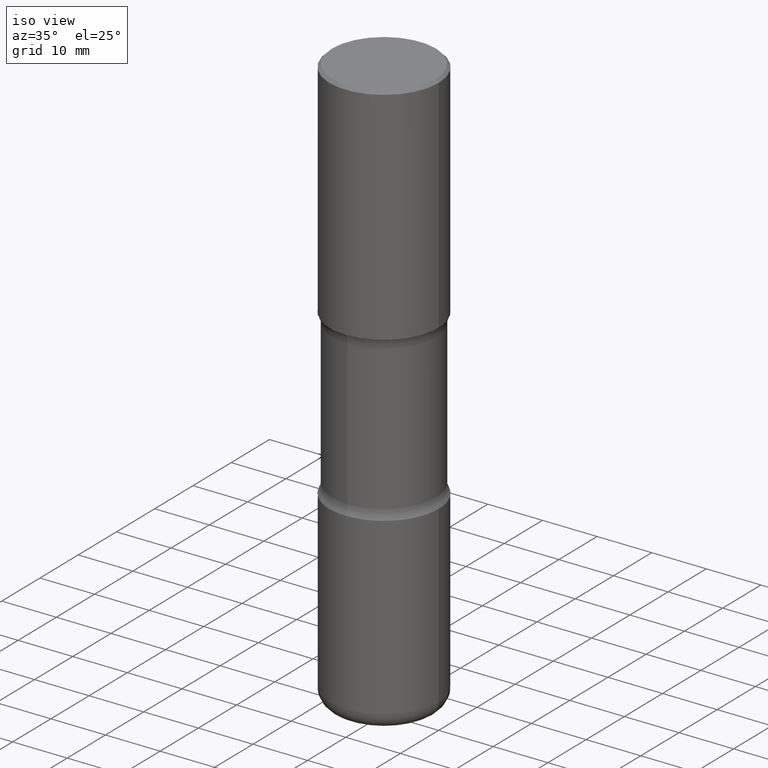
[diagram: clean part render]
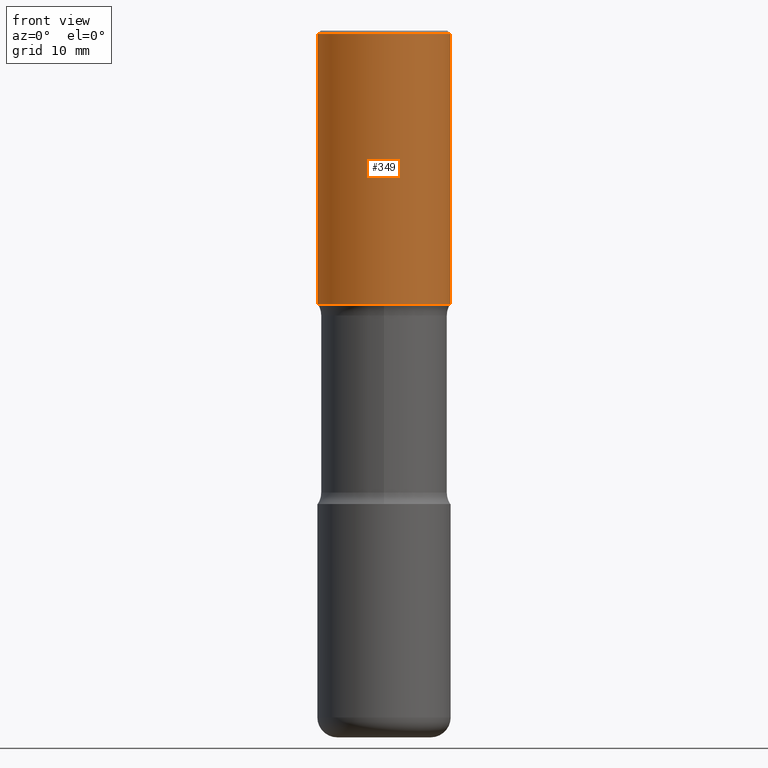
[diagram: tour spotlight — one face highlighted and labeled with its STEP entity id]
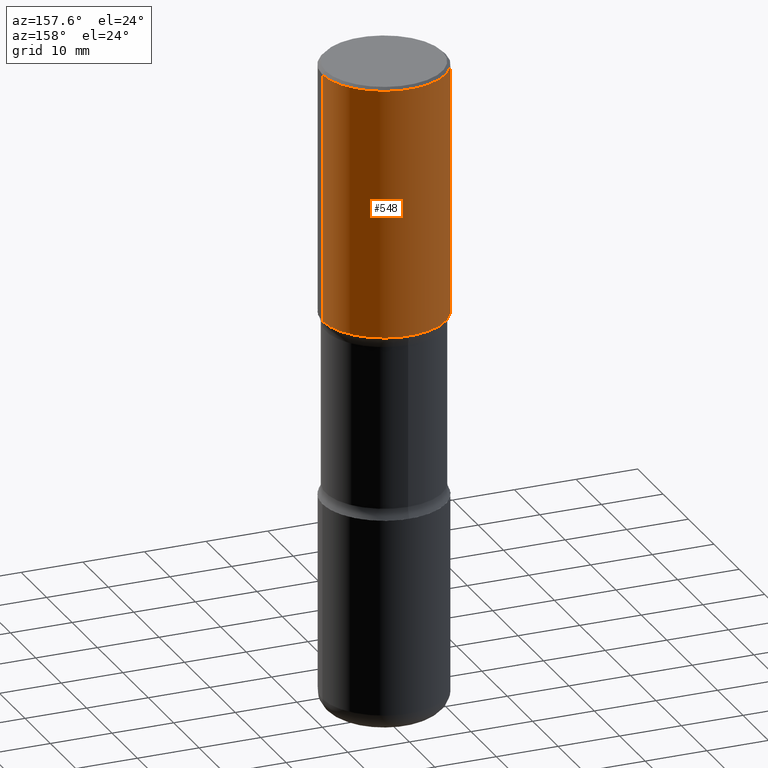
[diagram: tour spotlight — one face highlighted and labeled with its STEP entity id]
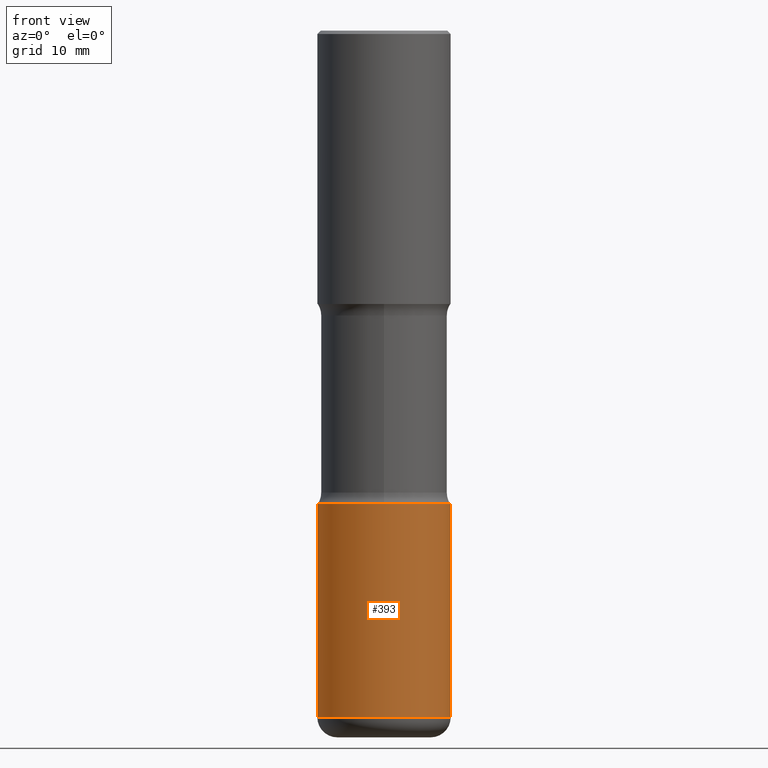
[diagram: tour spotlight — one face highlighted and labeled with its STEP entity id]
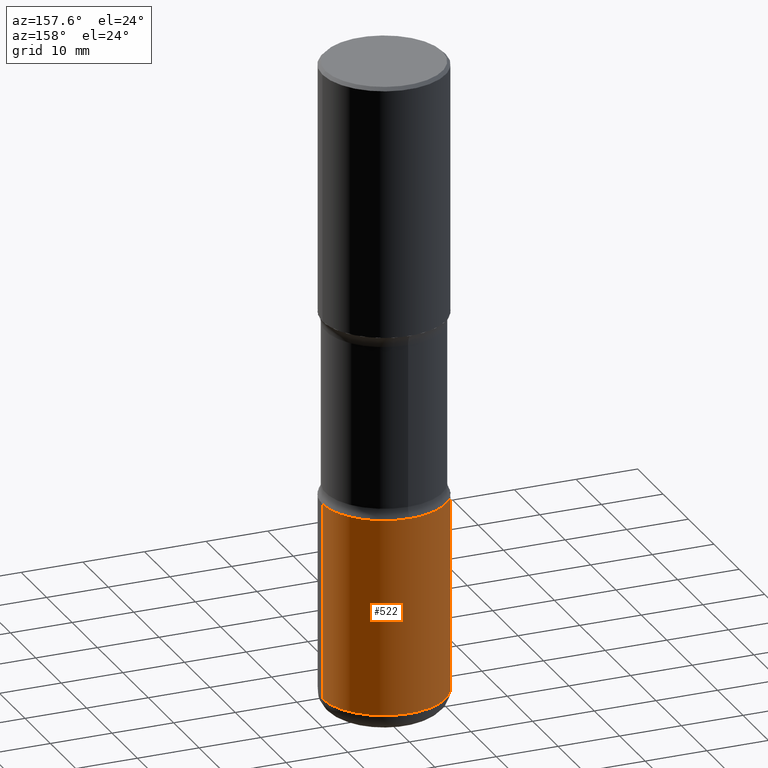
[diagram: tour spotlight — one face highlighted and labeled with its STEP entity id]
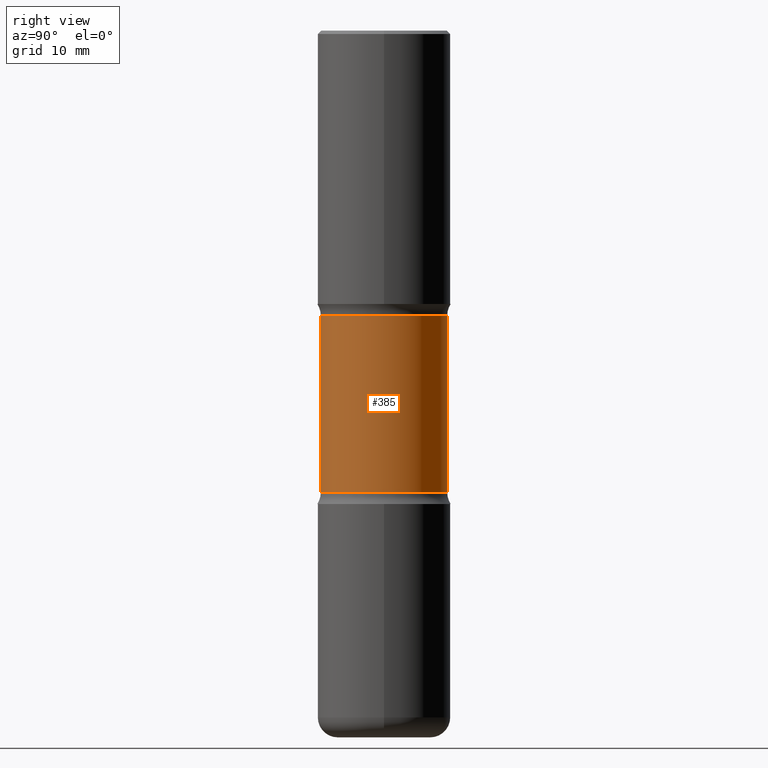
[diagram: tour spotlight — one face highlighted and labeled with its STEP entity id]
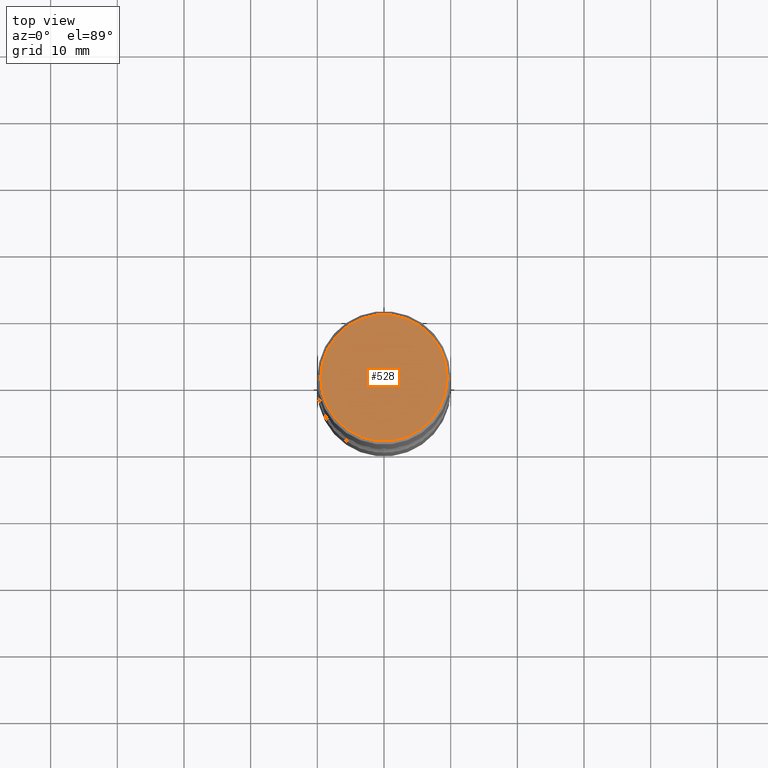
[diagram: tour spotlight — one face highlighted and labeled with its STEP entity id]
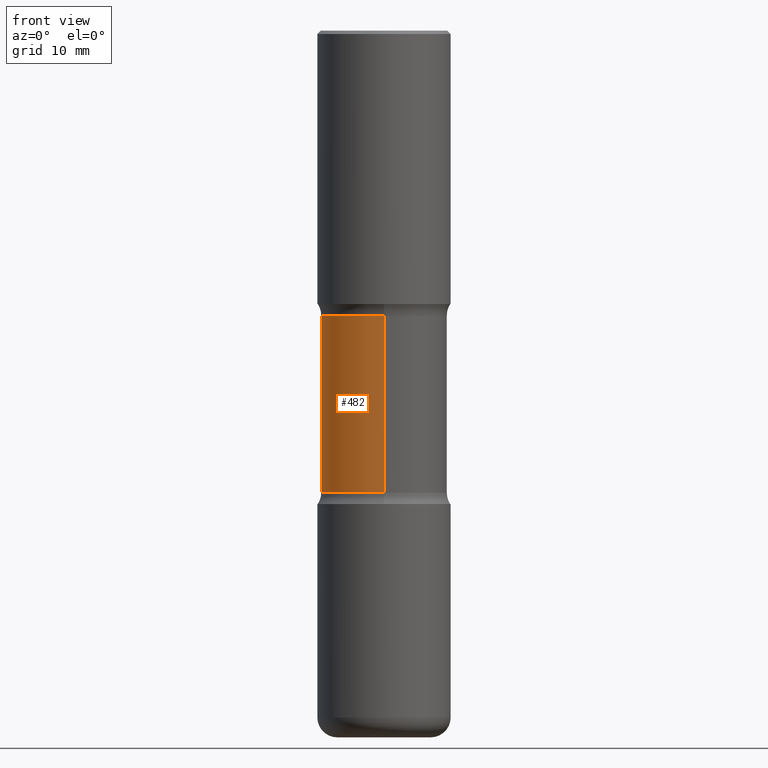
[diagram: tour spotlight — one face highlighted and labeled with its STEP entity id]
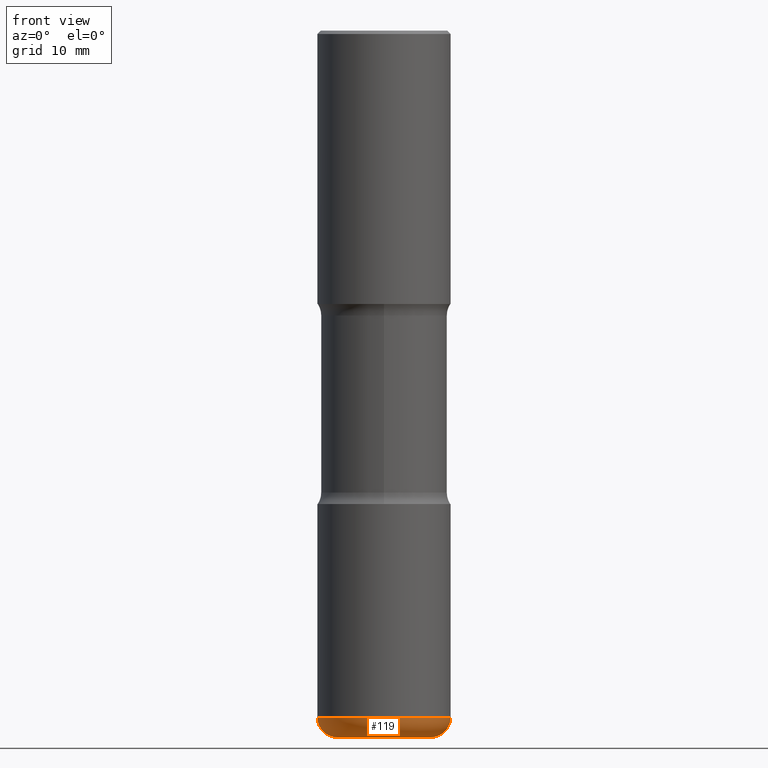
[diagram: tour spotlight — one face highlighted and labeled with its STEP entity id]
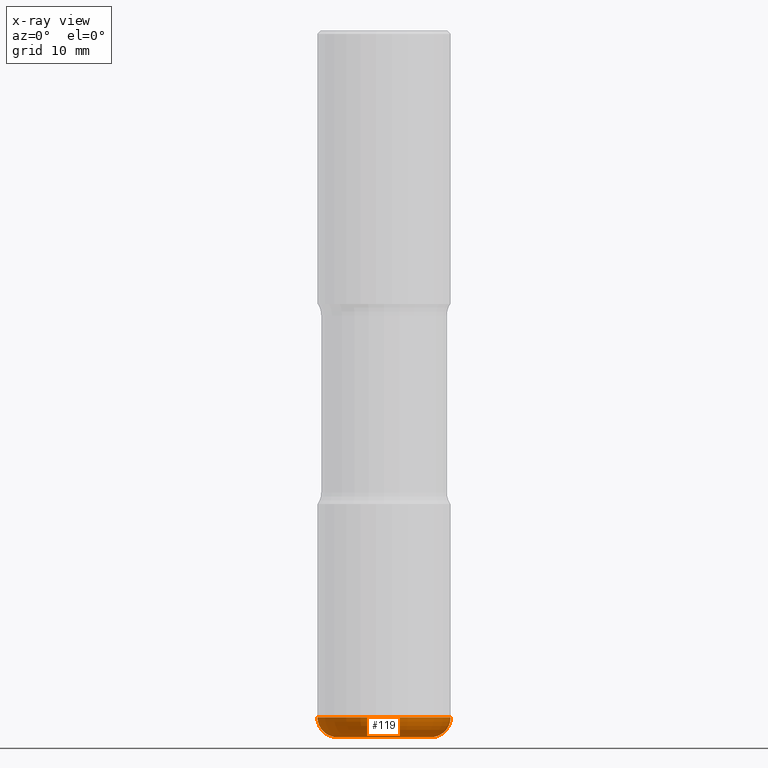
[diagram: x-ray of the same camera — body ghosted, this tour face saturated]
A machine part: a face-by-face anatomy tour. The part has 20 B-rep faces; the first image is the clean iso view, then the 8 largest visible faces are spotlighted one at a time (largest first), each with its STEP entity span.

Face 1 — front view, entity #349. In plain terms, the highlighted cylindrical surface (partial cylindrical patch) has radius 10 mm, axis along (-0, 0, 1).
Definition (entity closure, byte-faithful):
#1 = DIRECTION ( 'NONE',  ( -2.445468806185136877E-29, 3.491481338843145188E-15, 1.000000000000000000 ) ) ;
#7 = CYLINDRICAL_SURFACE ( 'NONE', #381, 0.3937000000000004940 ) ;
#9 = DIRECTION ( 'NONE',  ( 1.000000000000000000, -6.982962677686266711E-15, 0.000000000000000000 ) ) ;
#16 = VECTOR ( 'NONE', #54, 39.37007874015748143 ) ;
#54 = DIRECTION ( 'NONE',  ( -2.445468806185136877E-29, 3.491481338843145188E-15, 1.000000000000000000 ) ) ;
#57 = DIRECTION ( 'NONE',  ( -2.445468806185136597E-29, 3.491481338843145583E-15, 1.000000000000000000 ) ) ;
#75 = ORIENTED_EDGE ( 'NONE', *, *, #314, .T. ) ;
#82 = EDGE_LOOP ( 'NONE', ( #135, #509, #75, #345 ) ) ;
#85 = AXIS2_PLACEMENT_3D ( 'NONE', #102, #277, #443 ) ;
#89 = CARTESIAN_POINT ( 'NONE',  ( -0.3937000000000007160, -5.530807721427186863E-17, -1.614100000000000090 ) ) ;
#96 = CARTESIAN_POINT ( 'NONE',  ( 0.3937000000000004940, -2.749192406205086766E-15, 1.919750796630862414E-29 ) ) ;
#102 = CARTESIAN_POINT ( 'NONE',  ( 3.947231200063429727E-29, -5.635600029026721857E-15, -1.614100000000000090 ) ) ;
#135 = ORIENTED_EDGE ( 'NONE', *, *, #143, .F. ) ;
#138 = CIRCLE ( 'NONE', #85, 0.3937000000000006605 ) ;
#140 = DIRECTION ( 'NONE',  ( -2.445468806185136597E-29, 3.491481338843145583E-15, 1.000000000000000000 ) ) ;
#143 = EDGE_CURVE ( 'NONE', #174, #331, #299, .T. ) ;
#174 = VERTEX_POINT ( 'NONE', #89 ) ;
#184 = DIRECTION ( 'NONE',  ( 1.000000000000000000, -6.982962677686266711E-15, 4.876176775795935793E-29 ) ) ;
#225 = CARTESIAN_POINT ( 'NONE',  ( 4.890937612370306439E-31, -6.982962677686338448E-17, -0.02000000000000013572 ) ) ;
#251 = VERTEX_POINT ( 'NONE', #518 ) ;
#252 = CARTESIAN_POINT ( 'NONE',  ( -0.3937000000000004940, 2.797406750687517942E-15, -1.936584745033358697E-29 ) ) ;
#271 = FACE_OUTER_BOUND ( 'NONE', #82, .T. ) ;
#277 = DIRECTION ( 'NONE',  ( -2.445468806185136597E-29, 3.491481338843145583E-15, 1.000000000000000000 ) ) ;
#299 = LINE ( 'NONE', #252, #346 ) ;
#310 = AXIS2_PLACEMENT_3D ( 'NONE', #225, #140, #9 ) ;
#314 = EDGE_CURVE ( 'NONE', #251, #558, #521, .T. ) ;
#331 = VERTEX_POINT ( 'NONE', #481 ) ;
#345 = ORIENTED_EDGE ( 'NONE', *, *, #400, .F. ) ;
#346 = VECTOR ( 'NONE', #1, 39.37007874015748143 ) ;
#349 = ADVANCED_FACE ( 'NONE', ( #271 ), #7, .T. ) ;
#353 = CARTESIAN_POINT ( 'NONE',  ( 0.000000000000000000, 0.000000000000000000, 0.000000000000000000 ) ) ;
#381 = AXIS2_PLACEMENT_3D ( 'NONE', #353, #57, #184 ) ;
#390 = CARTESIAN_POINT ( 'NONE',  ( 0.3937000000000003830, -2.770807688499518100E-15, -0.02000000000000013572 ) ) ;
#400 = EDGE_CURVE ( 'NONE', #331, #558, #467, .T. ) ;
#443 = DIRECTION ( 'NONE',  ( 1.000000000000000000, -6.982962677686266711E-15, 0.000000000000000000 ) ) ;
#467 = CIRCLE ( 'NONE', #310, 0.3937000000000003830 ) ;
#481 = CARTESIAN_POINT ( 'NONE',  ( -0.3937000000000003830, 2.679362779428222679E-15, -0.02000000000000013572 ) ) ;
#502 = EDGE_CURVE ( 'NONE', #174, #251, #138, .T. ) ;
#509 = ORIENTED_EDGE ( 'NONE', *, *, #502, .T. ) ;
#518 = CARTESIAN_POINT ( 'NONE',  ( 0.3937000000000006605, -8.384792435231810596E-15, -1.614100000000000090 ) ) ;
#521 = LINE ( 'NONE', #96, #16 ) ;
#558 = VERTEX_POINT ( 'NONE', #390 ) ;

Face 2 — auxiliary view, entity #548. In plain terms, the highlighted cylindrical surface (partial cylindrical patch) has radius 10 mm, axis along (-0, 0, 1).
Definition (entity closure, byte-faithful):
#1 = DIRECTION ( 'NONE',  ( -2.445468806185136877E-29, 3.491481338843145188E-15, 1.000000000000000000 ) ) ;
#10 = CIRCLE ( 'NONE', #388, 0.3937000000000006605 ) ;
#16 = VECTOR ( 'NONE', #54, 39.37007874015748143 ) ;
#44 = EDGE_LOOP ( 'NONE', ( #239, #426, #193, #244 ) ) ;
#54 = DIRECTION ( 'NONE',  ( -2.445468806185136877E-29, 3.491481338843145188E-15, 1.000000000000000000 ) ) ;
#89 = CARTESIAN_POINT ( 'NONE',  ( -0.3937000000000007160, -5.530807721427186863E-17, -1.614100000000000090 ) ) ;
#96 = CARTESIAN_POINT ( 'NONE',  ( 0.3937000000000004940, -2.749192406205086766E-15, 1.919750796630862414E-29 ) ) ;
#100 = AXIS2_PLACEMENT_3D ( 'NONE', #103, #444, #178 ) ;
#103 = CARTESIAN_POINT ( 'NONE',  ( 0.000000000000000000, 0.000000000000000000, 0.000000000000000000 ) ) ;
#127 = DIRECTION ( 'NONE',  ( -2.445468806185136597E-29, 3.491481338843145583E-15, 1.000000000000000000 ) ) ;
#143 = EDGE_CURVE ( 'NONE', #174, #331, #299, .T. ) ;
#174 = VERTEX_POINT ( 'NONE', #89 ) ;
#178 = DIRECTION ( 'NONE',  ( 1.000000000000000000, -6.982962677686266711E-15, 4.876176775795935793E-29 ) ) ;
#191 = EDGE_CURVE ( 'NONE', #251, #174, #10, .T. ) ;
#193 = ORIENTED_EDGE ( 'NONE', *, *, #312, .F. ) ;
#224 = DIRECTION ( 'NONE',  ( 1.000000000000000000, -6.982962677686266711E-15, 0.000000000000000000 ) ) ;
#235 = AXIS2_PLACEMENT_3D ( 'NONE', #439, #315, #224 ) ;
#239 = ORIENTED_EDGE ( 'NONE', *, *, #191, .T. ) ;
#244 = ORIENTED_EDGE ( 'NONE', *, *, #314, .F. ) ;
#251 = VERTEX_POINT ( 'NONE', #518 ) ;
#252 = CARTESIAN_POINT ( 'NONE',  ( -0.3937000000000004940, 2.797406750687517942E-15, -1.936584745033358697E-29 ) ) ;
#255 = DIRECTION ( 'NONE',  ( 1.000000000000000000, -6.982962677686266711E-15, 0.000000000000000000 ) ) ;
#299 = LINE ( 'NONE', #252, #346 ) ;
#312 = EDGE_CURVE ( 'NONE', #558, #331, #413, .T. ) ;
#314 = EDGE_CURVE ( 'NONE', #251, #558, #521, .T. ) ;
#315 = DIRECTION ( 'NONE',  ( -2.445468806185136597E-29, 3.491481338843145583E-15, 1.000000000000000000 ) ) ;
#319 = FACE_OUTER_BOUND ( 'NONE', #44, .T. ) ;
#331 = VERTEX_POINT ( 'NONE', #481 ) ;
#344 = CARTESIAN_POINT ( 'NONE',  ( 3.947231200063429727E-29, -5.635600029026721857E-15, -1.614100000000000090 ) ) ;
#346 = VECTOR ( 'NONE', #1, 39.37007874015748143 ) ;
#388 = AXIS2_PLACEMENT_3D ( 'NONE', #344, #127, #255 ) ;
#390 = CARTESIAN_POINT ( 'NONE',  ( 0.3937000000000003830, -2.770807688499518100E-15, -0.02000000000000013572 ) ) ;
#413 = CIRCLE ( 'NONE', #235, 0.3937000000000003830 ) ;
#426 = ORIENTED_EDGE ( 'NONE', *, *, #143, .T. ) ;
#439 = CARTESIAN_POINT ( 'NONE',  ( 4.890937612370306439E-31, -6.982962677686338448E-17, -0.02000000000000013572 ) ) ;
#444 = DIRECTION ( 'NONE',  ( -2.445468806185136597E-29, 3.491481338843145583E-15, 1.000000000000000000 ) ) ;
#481 = CARTESIAN_POINT ( 'NONE',  ( -0.3937000000000003830, 2.679362779428222679E-15, -0.02000000000000013572 ) ) ;
#484 = CYLINDRICAL_SURFACE ( 'NONE', #100, 0.3937000000000004940 ) ;
#518 = CARTESIAN_POINT ( 'NONE',  ( 0.3937000000000006605, -8.384792435231810596E-15, -1.614100000000000090 ) ) ;
#521 = LINE ( 'NONE', #96, #16 ) ;
#548 = ADVANCED_FACE ( 'NONE', ( #319 ), #484, .T. ) ;
#558 = VERTEX_POINT ( 'NONE', #390 ) ;

Face 3 — front view, entity #393. In plain terms, the highlighted cylindrical surface (partial cylindrical patch) has radius 10 mm, axis along (-0, 0, 1).
Definition (entity closure, byte-faithful):
#5 = VECTOR ( 'NONE', #105, 39.37007874015748143 ) ;
#20 = DIRECTION ( 'NONE',  ( -2.445468806185136597E-29, 3.491481338843145583E-15, 1.000000000000000000 ) ) ;
#25 = ORIENTED_EDGE ( 'NONE', *, *, #45, .F. ) ;
#27 = EDGE_CURVE ( 'NONE', #87, #61, #248, .T. ) ;
#45 = EDGE_CURVE ( 'NONE', #410, #260, #537, .T. ) ;
#52 = FACE_OUTER_BOUND ( 'NONE', #341, .T. ) ;
#61 = VERTEX_POINT ( 'NONE', #409 ) ;
#63 = DIRECTION ( 'NONE',  ( 1.000000000000000000, -6.982962677686268288E-15, 0.000000000000000000 ) ) ;
#66 = CARTESIAN_POINT ( 'NONE',  ( -0.3937000000000004940, 2.797406750687517942E-15, -1.936584745033358697E-29 ) ) ;
#87 = VERTEX_POINT ( 'NONE', #176 ) ;
#105 = DIRECTION ( 'NONE',  ( -2.445468806185136877E-29, 3.491481338843145188E-15, 1.000000000000000000 ) ) ;
#125 = EDGE_CURVE ( 'NONE', #260, #61, #504, .T. ) ;
#176 = CARTESIAN_POINT ( 'NONE',  ( 0.3937000000000009381, -1.690749838334792865E-14, -4.055099999999999483 ) ) ;
#233 = VECTOR ( 'NONE', #416, 39.37007874015748143 ) ;
#248 = LINE ( 'NONE', #486, #5 ) ;
#260 = VERTEX_POINT ( 'NONE', #269 ) ;
#269 = CARTESIAN_POINT ( 'NONE',  ( -0.3937000000000002164, -9.161440557051081666E-15, -2.795200000000000351 ) ) ;
#272 = DIRECTION ( 'NONE',  ( 1.000000000000000000, -6.982962677686266711E-15, 4.876176775795935793E-29 ) ) ;
#283 = ORIENTED_EDGE ( 'NONE', *, *, #27, .T. ) ;
#305 = DIRECTION ( 'NONE',  ( -2.445468806185136597E-29, 3.491481338843145583E-15, 1.000000000000000000 ) ) ;
#327 = CIRCLE ( 'NONE', #459, 0.3937000000000008271 ) ;
#336 = AXIS2_PLACEMENT_3D ( 'NONE', #526, #527, #272 ) ;
#339 = DIRECTION ( 'NONE',  ( 1.000000000000000000, -6.982962677686269866E-15, 0.000000000000000000 ) ) ;
#341 = EDGE_LOOP ( 'NONE', ( #25, #407, #283, #368 ) ) ;
#368 = ORIENTED_EDGE ( 'NONE', *, *, #125, .F. ) ;
#393 = ADVANCED_FACE ( 'NONE', ( #52 ), #394, .T. ) ;
#394 = CYLINDRICAL_SURFACE ( 'NONE', #336, 0.3937000000000004940 ) ;
#407 = ORIENTED_EDGE ( 'NONE', *, *, #485, .T. ) ;
#409 = CARTESIAN_POINT ( 'NONE',  ( 0.3937000000000002164, -1.250858104453944804E-14, -2.795200000000000351 ) ) ;
#410 = VERTEX_POINT ( 'NONE', #437 ) ;
#411 = CARTESIAN_POINT ( 'NONE',  ( 9.916620555961346429E-29, -1.415830597714283912E-14, -4.055099999999999483 ) ) ;
#416 = DIRECTION ( 'NONE',  ( -2.445468806185136877E-29, 3.491481338843145188E-15, 1.000000000000000000 ) ) ;
#422 = CARTESIAN_POINT ( 'NONE',  ( 6.835574407048695164E-29, -9.759388638334361670E-15, -2.795200000000000351 ) ) ;
#437 = CARTESIAN_POINT ( 'NONE',  ( -0.3937000000000009381, -1.136089922645531724E-14, -4.055099999999999483 ) ) ;
#459 = AXIS2_PLACEMENT_3D ( 'NONE', #411, #20, #63 ) ;
#485 = EDGE_CURVE ( 'NONE', #410, #87, #327, .T. ) ;
#486 = CARTESIAN_POINT ( 'NONE',  ( 0.3937000000000004940, -2.749192406205086766E-15, 1.919750796630862414E-29 ) ) ;
#504 = CIRCLE ( 'NONE', #524, 0.3937000000000002164 ) ;
#524 = AXIS2_PLACEMENT_3D ( 'NONE', #422, #305, #339 ) ;
#526 = CARTESIAN_POINT ( 'NONE',  ( 0.000000000000000000, 0.000000000000000000, 0.000000000000000000 ) ) ;
#527 = DIRECTION ( 'NONE',  ( -2.445468806185136597E-29, 3.491481338843145583E-15, 1.000000000000000000 ) ) ;
#537 = LINE ( 'NONE', #66, #233 ) ;

Face 4 — auxiliary view, entity #522. In plain terms, the highlighted cylindrical surface (partial cylindrical patch) has radius 10 mm, axis along (-0, 0, 1).
Definition (entity closure, byte-faithful):
#5 = VECTOR ( 'NONE', #105, 39.37007874015748143 ) ;
#27 = EDGE_CURVE ( 'NONE', #87, #61, #248, .T. ) ;
#39 = EDGE_CURVE ( 'NONE', #87, #410, #226, .T. ) ;
#45 = EDGE_CURVE ( 'NONE', #410, #260, #537, .T. ) ;
#46 = CARTESIAN_POINT ( 'NONE',  ( 6.835574407048695164E-29, -9.759388638334361670E-15, -2.795200000000000351 ) ) ;
#61 = VERTEX_POINT ( 'NONE', #409 ) ;
#65 = ORIENTED_EDGE ( 'NONE', *, *, #39, .T. ) ;
#66 = CARTESIAN_POINT ( 'NONE',  ( -0.3937000000000004940, 2.797406750687517942E-15, -1.936584745033358697E-29 ) ) ;
#86 = DIRECTION ( 'NONE',  ( -2.445468806185136597E-29, 3.491481338843145583E-15, 1.000000000000000000 ) ) ;
#87 = VERTEX_POINT ( 'NONE', #176 ) ;
#93 = CARTESIAN_POINT ( 'NONE',  ( 0.000000000000000000, 0.000000000000000000, 0.000000000000000000 ) ) ;
#95 = EDGE_CURVE ( 'NONE', #61, #260, #197, .T. ) ;
#105 = DIRECTION ( 'NONE',  ( -2.445468806185136877E-29, 3.491481338843145188E-15, 1.000000000000000000 ) ) ;
#133 = DIRECTION ( 'NONE',  ( -2.445468806185136597E-29, 3.491481338843145583E-15, 1.000000000000000000 ) ) ;
#164 = ORIENTED_EDGE ( 'NONE', *, *, #27, .F. ) ;
#171 = ORIENTED_EDGE ( 'NONE', *, *, #45, .T. ) ;
#176 = CARTESIAN_POINT ( 'NONE',  ( 0.3937000000000009381, -1.690749838334792865E-14, -4.055099999999999483 ) ) ;
#189 = FACE_OUTER_BOUND ( 'NONE', #417, .T. ) ;
#197 = CIRCLE ( 'NONE', #480, 0.3937000000000002164 ) ;
#226 = CIRCLE ( 'NONE', #359, 0.3937000000000008271 ) ;
#233 = VECTOR ( 'NONE', #416, 39.37007874015748143 ) ;
#248 = LINE ( 'NONE', #486, #5 ) ;
#260 = VERTEX_POINT ( 'NONE', #269 ) ;
#264 = DIRECTION ( 'NONE',  ( 1.000000000000000000, -6.982962677686266711E-15, 4.876176775795935793E-29 ) ) ;
#269 = CARTESIAN_POINT ( 'NONE',  ( -0.3937000000000002164, -9.161440557051081666E-15, -2.795200000000000351 ) ) ;
#321 = ORIENTED_EDGE ( 'NONE', *, *, #95, .F. ) ;
#340 = DIRECTION ( 'NONE',  ( 1.000000000000000000, -6.982962677686269866E-15, 0.000000000000000000 ) ) ;
#359 = AXIS2_PLACEMENT_3D ( 'NONE', #364, #453, #457 ) ;
#364 = CARTESIAN_POINT ( 'NONE',  ( 9.916620555961346429E-29, -1.415830597714283912E-14, -4.055099999999999483 ) ) ;
#409 = CARTESIAN_POINT ( 'NONE',  ( 0.3937000000000002164, -1.250858104453944804E-14, -2.795200000000000351 ) ) ;
#410 = VERTEX_POINT ( 'NONE', #437 ) ;
#416 = DIRECTION ( 'NONE',  ( -2.445468806185136877E-29, 3.491481338843145188E-15, 1.000000000000000000 ) ) ;
#417 = EDGE_LOOP ( 'NONE', ( #65, #171, #321, #164 ) ) ;
#437 = CARTESIAN_POINT ( 'NONE',  ( -0.3937000000000009381, -1.136089922645531724E-14, -4.055099999999999483 ) ) ;
#442 = CYLINDRICAL_SURFACE ( 'NONE', #525, 0.3937000000000004940 ) ;
#453 = DIRECTION ( 'NONE',  ( -2.445468806185136597E-29, 3.491481338843145583E-15, 1.000000000000000000 ) ) ;
#457 = DIRECTION ( 'NONE',  ( 1.000000000000000000, -6.982962677686268288E-15, 0.000000000000000000 ) ) ;
#480 = AXIS2_PLACEMENT_3D ( 'NONE', #46, #86, #340 ) ;
#486 = CARTESIAN_POINT ( 'NONE',  ( 0.3937000000000004940, -2.749192406205086766E-15, 1.919750796630862414E-29 ) ) ;
#522 = ADVANCED_FACE ( 'NONE', ( #189 ), #442, .T. ) ;
#525 = AXIS2_PLACEMENT_3D ( 'NONE', #93, #133, #264 ) ;
#537 = LINE ( 'NONE', #66, #233 ) ;

Face 5 — right view, entity #385. In plain terms, the highlighted cylindrical surface (partial cylindrical patch) has radius 9.4869 mm, axis along (0, -0, -1).
Definition (entity closure, byte-faithful):
#8 = DIRECTION ( 'NONE',  ( 6.982962677686265922E-15, 1.000000000000000000, -2.925673888797068135E-15 ) ) ;
#11 = CIRCLE ( 'NONE', #505, 0.3735000000000000542 ) ;
#23 = CARTESIAN_POINT ( 'NONE',  ( -2.631687031945092870E-15, -0.3735000000000095466, -2.727068069159900521 ) ) ;
#49 = AXIS2_PLACEMENT_3D ( 'NONE', #134, #307, #8 ) ;
#58 = DIRECTION ( 'NONE',  ( 2.497382066111305685E-29, -3.417138595909611452E-15, -1.000000000000000000 ) ) ;
#67 = VERTEX_POINT ( 'NONE', #23 ) ;
#90 = LINE ( 'NONE', #181, #227 ) ;
#101 = CARTESIAN_POINT ( 'NONE',  ( -2.562396002167564465E-15, -0.3735000000000145981, -4.173199999999998688 ) ) ;
#109 = CARTESIAN_POINT ( 'NONE',  ( 2.608136560115862805E-15, 0.3734999999999943365, -1.682231930840100809 ) ) ;
#113 = EDGE_CURVE ( 'NONE', #458, #550, #155, .T. ) ;
#129 = DIRECTION ( 'NONE',  ( 6.982962677686265922E-15, 1.000000000000000000, -3.657092360996333689E-15 ) ) ;
#134 = CARTESIAN_POINT ( 'NONE',  ( 1.027696689415007474E-28, -1.446820562349780459E-14, -4.173200000000000465 ) ) ;
#141 = CARTESIAN_POINT ( 'NONE',  ( 2.608136560115886865E-15, 0.3734999999999905618, -2.727068069159902741 ) ) ;
#155 = CIRCLE ( 'NONE', #274, 0.3735000000000002762 ) ;
#159 = ORIENTED_EDGE ( 'NONE', *, *, #361, .F. ) ;
#180 = CARTESIAN_POINT ( 'NONE',  ( 6.665422944839096374E-29, -9.526572387846816848E-15, -2.727068069159901409 ) ) ;
#181 = CARTESIAN_POINT ( 'NONE',  ( 2.608136560115923941E-15, 0.3734999999999856213, -4.173200000000001353 ) ) ;
#196 = ORIENTED_EDGE ( 'NONE', *, *, #354, .T. ) ;
#215 = EDGE_LOOP ( 'NONE', ( #263, #196, #159, #519 ) ) ;
#216 = CARTESIAN_POINT ( 'NONE',  ( -2.631687031945122847E-15, -0.3735000000000062159, -1.682231930840098144 ) ) ;
#227 = VECTOR ( 'NONE', #355, 39.37007874015748143 ) ;
#229 = LINE ( 'NONE', #101, #270 ) ;
#263 = ORIENTED_EDGE ( 'NONE', *, *, #113, .T. ) ;
#270 = VECTOR ( 'NONE', #436, 39.37007874015748143 ) ;
#274 = AXIS2_PLACEMENT_3D ( 'NONE', #464, #378, #129 ) ;
#307 = DIRECTION ( 'NONE',  ( 2.497382066111305685E-29, -3.417138595909611452E-15, -1.000000000000000000 ) ) ;
#328 = VERTEX_POINT ( 'NONE', #141 ) ;
#350 = FACE_OUTER_BOUND ( 'NONE', #215, .T. ) ;
#354 = EDGE_CURVE ( 'NONE', #550, #67, #229, .T. ) ;
#355 = DIRECTION ( 'NONE',  ( 2.497382066111305685E-29, -3.417138595909611452E-15, -1.000000000000000000 ) ) ;
#356 = CYLINDRICAL_SURFACE ( 'NONE', #49, 0.3735000000000001097 ) ;
#361 = EDGE_CURVE ( 'NONE', #328, #67, #11, .T. ) ;
#378 = DIRECTION ( 'NONE',  ( 2.497382066111305685E-29, -3.417138595909611452E-15, -1.000000000000000000 ) ) ;
#385 = ADVANCED_FACE ( 'NONE', ( #350 ), #356, .T. ) ;
#391 = DIRECTION ( 'NONE',  ( 6.982962677686265922E-15, 1.000000000000000000, -2.925673888797068529E-15 ) ) ;
#408 = EDGE_CURVE ( 'NONE', #458, #328, #90, .T. ) ;
#436 = DIRECTION ( 'NONE',  ( 2.497382066111305685E-29, -3.417138595909611452E-15, -1.000000000000000000 ) ) ;
#458 = VERTEX_POINT ( 'NONE', #109 ) ;
#464 = CARTESIAN_POINT ( 'NONE',  ( 4.056067910974230799E-29, -5.956222493193065901E-15, -1.682231930840099476 ) ) ;
#505 = AXIS2_PLACEMENT_3D ( 'NONE', #180, #58, #391 ) ;
#519 = ORIENTED_EDGE ( 'NONE', *, *, #408, .F. ) ;
#550 = VERTEX_POINT ( 'NONE', #216 ) ;

Face 6 — top view, entity #528. In plain terms, the highlighted planar face has unit normal (0, -0, -1).
Definition (entity closure, byte-faithful):
#6 = CARTESIAN_POINT ( 'NONE',  ( 2.609533152651359776E-15, 0.3737000000000003097, -1.311169345060835261E-15 ) ) ;
#15 = FACE_OUTER_BOUND ( 'NONE', #48, .T. ) ;
#37 = AXIS2_PLACEMENT_3D ( 'NONE', #173, #298, #265 ) ;
#41 = ORIENTED_EDGE ( 'NONE', *, *, #308, .T. ) ;
#48 = EDGE_LOOP ( 'NONE', ( #162, #41 ) ) ;
#50 = DIRECTION ( 'NONE',  ( -1.000000000000000000, 6.982962677686265922E-15, -4.876176775795935793E-29 ) ) ;
#147 = CARTESIAN_POINT ( 'NONE',  ( -0.3737000000000003097, 2.644447966039791425E-15, -1.280553747031960567E-17 ) ) ;
#162 = ORIENTED_EDGE ( 'NONE', *, *, #186, .T. ) ;
#173 = CARTESIAN_POINT ( 'NONE',  ( 3.131554243005659264E-46, -4.471029511141341874E-32, -1.280553747030123384E-17 ) ) ;
#186 = EDGE_CURVE ( 'NONE', #544, #254, #530, .T. ) ;
#247 = CIRCLE ( 'NONE', #557, 0.3737000000000003097 ) ;
#254 = VERTEX_POINT ( 'NONE', #552 ) ;
#265 = DIRECTION ( 'NONE',  ( 1.000000000000000000, -6.982962677686266711E-15, 4.876212485538971195E-29 ) ) ;
#298 = DIRECTION ( 'NONE',  ( -2.445468806185136597E-29, 3.491481338843145583E-15, 1.000000000000000000 ) ) ;
#308 = EDGE_CURVE ( 'NONE', #254, #544, #247, .T. ) ;
#357 = CARTESIAN_POINT ( 'NONE',  ( 3.131554243005659264E-46, -4.471029511141341874E-32, -1.280553747030123384E-17 ) ) ;
#362 = PLANE ( 'NONE',  #389 ) ;
#389 = AXIS2_PLACEMENT_3D ( 'NONE', #6, #533, #50 ) ;
#399 = DIRECTION ( 'NONE',  ( -2.445468806185136597E-29, 3.491481338843145583E-15, 1.000000000000000000 ) ) ;
#528 = ADVANCED_FACE ( 'NONE', ( #15 ), #362, .F. ) ;
#529 = DIRECTION ( 'NONE',  ( 1.000000000000000000, -6.982962677686266711E-15, 4.876212485538971195E-29 ) ) ;
#530 = CIRCLE ( 'NONE', #37, 0.3737000000000003097 ) ;
#533 = DIRECTION ( 'NONE',  ( 2.438088387897960049E-29, -3.491481338843145188E-15, -1.000000000000000000 ) ) ;
#544 = VERTEX_POINT ( 'NONE', #147 ) ;
#552 = CARTESIAN_POINT ( 'NONE',  ( 0.3737000000000003097, -2.667287895133370725E-15, -1.280553747028278189E-17 ) ) ;
#557 = AXIS2_PLACEMENT_3D ( 'NONE', #357, #399, #529 ) ;

Face 7 — front view, entity #482. In plain terms, the highlighted cylindrical surface (partial cylindrical patch) has radius 9.4869 mm, axis along (0, -0, -1).
Definition (entity closure, byte-faithful):
#23 = CARTESIAN_POINT ( 'NONE',  ( -2.631687031945092870E-15, -0.3735000000000095466, -2.727068069159900521 ) ) ;
#26 = CIRCLE ( 'NONE', #282, 0.3735000000000000542 ) ;
#36 = DIRECTION ( 'NONE',  ( 2.497382066111305685E-29, -3.417138595909611452E-15, -1.000000000000000000 ) ) ;
#60 = EDGE_CURVE ( 'NONE', #550, #458, #217, .T. ) ;
#64 = ORIENTED_EDGE ( 'NONE', *, *, #60, .T. ) ;
#67 = VERTEX_POINT ( 'NONE', #23 ) ;
#90 = LINE ( 'NONE', #181, #227 ) ;
#101 = CARTESIAN_POINT ( 'NONE',  ( -2.562396002167564465E-15, -0.3735000000000145981, -4.173199999999998688 ) ) ;
#104 = CARTESIAN_POINT ( 'NONE',  ( 1.027696689415007474E-28, -1.446820562349780459E-14, -4.173200000000000465 ) ) ;
#109 = CARTESIAN_POINT ( 'NONE',  ( 2.608136560115862805E-15, 0.3734999999999943365, -1.682231930840100809 ) ) ;
#136 = EDGE_CURVE ( 'NONE', #67, #328, #26, .T. ) ;
#141 = CARTESIAN_POINT ( 'NONE',  ( 2.608136560115886865E-15, 0.3734999999999905618, -2.727068069159902741 ) ) ;
#146 = CYLINDRICAL_SURFACE ( 'NONE', #447, 0.3735000000000001097 ) ;
#152 = CARTESIAN_POINT ( 'NONE',  ( 4.056067910974230799E-29, -5.956222493193065901E-15, -1.682231930840099476 ) ) ;
#181 = CARTESIAN_POINT ( 'NONE',  ( 2.608136560115923941E-15, 0.3734999999999856213, -4.173200000000001353 ) ) ;
#203 = EDGE_LOOP ( 'NONE', ( #220, #64, #454, #234 ) ) ;
#216 = CARTESIAN_POINT ( 'NONE',  ( -2.631687031945122847E-15, -0.3735000000000062159, -1.682231930840098144 ) ) ;
#217 = CIRCLE ( 'NONE', #490, 0.3735000000000002762 ) ;
#220 = ORIENTED_EDGE ( 'NONE', *, *, #354, .F. ) ;
#227 = VECTOR ( 'NONE', #355, 39.37007874015748143 ) ;
#229 = LINE ( 'NONE', #101, #270 ) ;
#234 = ORIENTED_EDGE ( 'NONE', *, *, #136, .F. ) ;
#243 = DIRECTION ( 'NONE',  ( 2.497382066111305685E-29, -3.417138595909611452E-15, -1.000000000000000000 ) ) ;
#259 = CARTESIAN_POINT ( 'NONE',  ( 6.665422944839096374E-29, -9.526572387846816848E-15, -2.727068069159901409 ) ) ;
#270 = VECTOR ( 'NONE', #436, 39.37007874015748143 ) ;
#282 = AXIS2_PLACEMENT_3D ( 'NONE', #259, #36, #470 ) ;
#287 = FACE_OUTER_BOUND ( 'NONE', #203, .T. ) ;
#323 = DIRECTION ( 'NONE',  ( 2.497382066111305685E-29, -3.417138595909611452E-15, -1.000000000000000000 ) ) ;
#328 = VERTEX_POINT ( 'NONE', #141 ) ;
#330 = DIRECTION ( 'NONE',  ( 6.982962677686265922E-15, 1.000000000000000000, -3.657092360996333689E-15 ) ) ;
#354 = EDGE_CURVE ( 'NONE', #550, #67, #229, .T. ) ;
#355 = DIRECTION ( 'NONE',  ( 2.497382066111305685E-29, -3.417138595909611452E-15, -1.000000000000000000 ) ) ;
#401 = DIRECTION ( 'NONE',  ( 6.982962677686265922E-15, 1.000000000000000000, -2.925673888797068135E-15 ) ) ;
#408 = EDGE_CURVE ( 'NONE', #458, #328, #90, .T. ) ;
#436 = DIRECTION ( 'NONE',  ( 2.497382066111305685E-29, -3.417138595909611452E-15, -1.000000000000000000 ) ) ;
#447 = AXIS2_PLACEMENT_3D ( 'NONE', #104, #243, #401 ) ;
#454 = ORIENTED_EDGE ( 'NONE', *, *, #408, .T. ) ;
#458 = VERTEX_POINT ( 'NONE', #109 ) ;
#470 = DIRECTION ( 'NONE',  ( 6.982962677686265922E-15, 1.000000000000000000, -2.925673888797068529E-15 ) ) ;
#482 = ADVANCED_FACE ( 'NONE', ( #287 ), #146, .T. ) ;
#490 = AXIS2_PLACEMENT_3D ( 'NONE', #152, #323, #330 ) ;
#550 = VERTEX_POINT ( 'NONE', #216 ) ;

Face 8 — front view, entity #119. An x-ray twin of the same camera follows (body ghosted, this face saturated) — the face is partly hidden behind the body. In plain terms, the highlighted toroidal blend (fillet) surface has major radius 7.0002 mm and minor (blend) radius 2.9997 mm.
Definition (entity closure, byte-faithful):
#20 = DIRECTION ( 'NONE',  ( -2.445468806185136597E-29, 3.491481338843145583E-15, 1.000000000000000000 ) ) ;
#30 = EDGE_LOOP ( 'NONE', ( #304, #384, #545, #512 ) ) ;
#38 = AXIS2_PLACEMENT_3D ( 'NONE', #366, #406, #221 ) ;
#40 = CARTESIAN_POINT ( 'NONE',  ( 0.2756000000000008998, -1.608281049111318039E-14, -4.055099999999999483 ) ) ;
#55 = AXIS2_PLACEMENT_3D ( 'NONE', #465, #79, #428 ) ;
#59 = CARTESIAN_POINT ( 'NONE',  ( -0.2756000000000008998, -1.198664668498034458E-14, -4.173199999999999577 ) ) ;
#63 = DIRECTION ( 'NONE',  ( 1.000000000000000000, -6.982962677686268288E-15, 0.000000000000000000 ) ) ;
#79 = DIRECTION ( 'NONE',  ( -2.445468806185136597E-29, 3.491481338843145583E-15, 1.000000000000000000 ) ) ;
#83 = DIRECTION ( 'NONE',  ( -2.445468806185136597E-29, 3.491481338843145583E-15, 1.000000000000000000 ) ) ;
#87 = VERTEX_POINT ( 'NONE', #176 ) ;
#99 = AXIS2_PLACEMENT_3D ( 'NONE', #40, #383, #419 ) ;
#117 = VERTEX_POINT ( 'NONE', #163 ) ;
#119 = ADVANCED_FACE ( 'NONE', ( #126 ), #209, .T. ) ;
#126 = FACE_OUTER_BOUND ( 'NONE', #30, .T. ) ;
#130 = CIRCLE ( 'NONE', #38, 0.1181000000000000383 ) ;
#132 = EDGE_CURVE ( 'NONE', #506, #117, #267, .T. ) ;
#163 = CARTESIAN_POINT ( 'NONE',  ( 0.2756000000000008998, -1.649515443723055294E-14, -4.173199999999999577 ) ) ;
#166 = EDGE_CURVE ( 'NONE', #117, #87, #474, .T. ) ;
#168 = AXIS2_PLACEMENT_3D ( 'NONE', #170, #83, #214 ) ;
#170 = CARTESIAN_POINT ( 'NONE',  ( 1.020543042197181255E-28, -1.457064992326021168E-14, -4.173199999999999577 ) ) ;
#176 = CARTESIAN_POINT ( 'NONE',  ( 0.3937000000000009381, -1.690749838334792865E-14, -4.055099999999999483 ) ) ;
#209 = TOROIDAL_SURFACE ( 'NONE', #55, 0.2756000000000008998, 0.1180999999999999966 ) ;
#214 = DIRECTION ( 'NONE',  ( 1.000000000000000000, -6.982962677686265133E-15, 0.000000000000000000 ) ) ;
#221 = DIRECTION ( 'NONE',  ( -1.000000000000000000, 7.105427357601001859E-15, 0.000000000000000000 ) ) ;
#267 = CIRCLE ( 'NONE', #168, 0.2756000000000008998 ) ;
#304 = ORIENTED_EDGE ( 'NONE', *, *, #560, .F. ) ;
#327 = CIRCLE ( 'NONE', #459, 0.3937000000000008271 ) ;
#366 = CARTESIAN_POINT ( 'NONE',  ( -0.2756000000000008998, -1.220005019738799465E-14, -4.055099999999999483 ) ) ;
#383 = DIRECTION ( 'NONE',  ( -6.982962677686266711E-15, -1.000000000000000000, 3.491481338843145583E-15 ) ) ;
#384 = ORIENTED_EDGE ( 'NONE', *, *, #132, .T. ) ;
#406 = DIRECTION ( 'NONE',  ( 7.105427357601001859E-15, 1.000000000000000000, -3.491481338843145583E-15 ) ) ;
#410 = VERTEX_POINT ( 'NONE', #437 ) ;
#411 = CARTESIAN_POINT ( 'NONE',  ( 9.916620555961346429E-29, -1.415830597714283912E-14, -4.055099999999999483 ) ) ;
#419 = DIRECTION ( 'NONE',  ( 1.000000000000000000, -6.982962677686270655E-15, 0.000000000000000000 ) ) ;
#428 = DIRECTION ( 'NONE',  ( 1.000000000000000000, -6.982962677686266711E-15, 4.883557194083112340E-29 ) ) ;
#437 = CARTESIAN_POINT ( 'NONE',  ( -0.3937000000000009381, -1.136089922645531724E-14, -4.055099999999999483 ) ) ;
#459 = AXIS2_PLACEMENT_3D ( 'NONE', #411, #20, #63 ) ;
#465 = CARTESIAN_POINT ( 'NONE',  ( 9.916620555961346429E-29, -1.415830597714283912E-14, -4.055099999999999483 ) ) ;
#474 = CIRCLE ( 'NONE', #99, 0.1181000000000000383 ) ;
#485 = EDGE_CURVE ( 'NONE', #410, #87, #327, .T. ) ;
#506 = VERTEX_POINT ( 'NONE', #59 ) ;
#512 = ORIENTED_EDGE ( 'NONE', *, *, #485, .F. ) ;
#545 = ORIENTED_EDGE ( 'NONE', *, *, #166, .T. ) ;
#560 = EDGE_CURVE ( 'NONE', #506, #410, #130, .T. ) ;